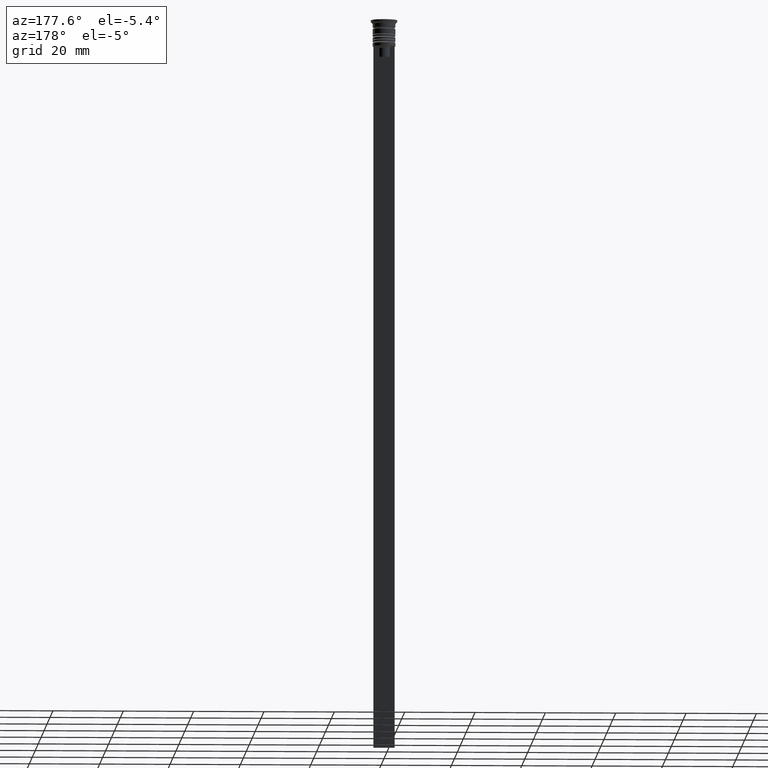
[diagram: clean part render]
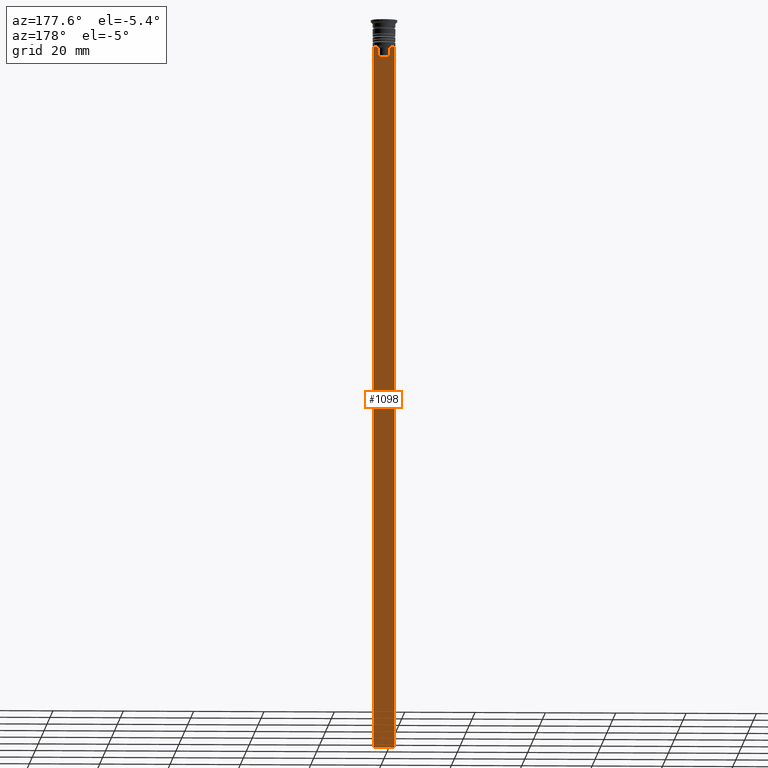
[diagram: same view with one face highlighted and labeled with its STEP entity id]
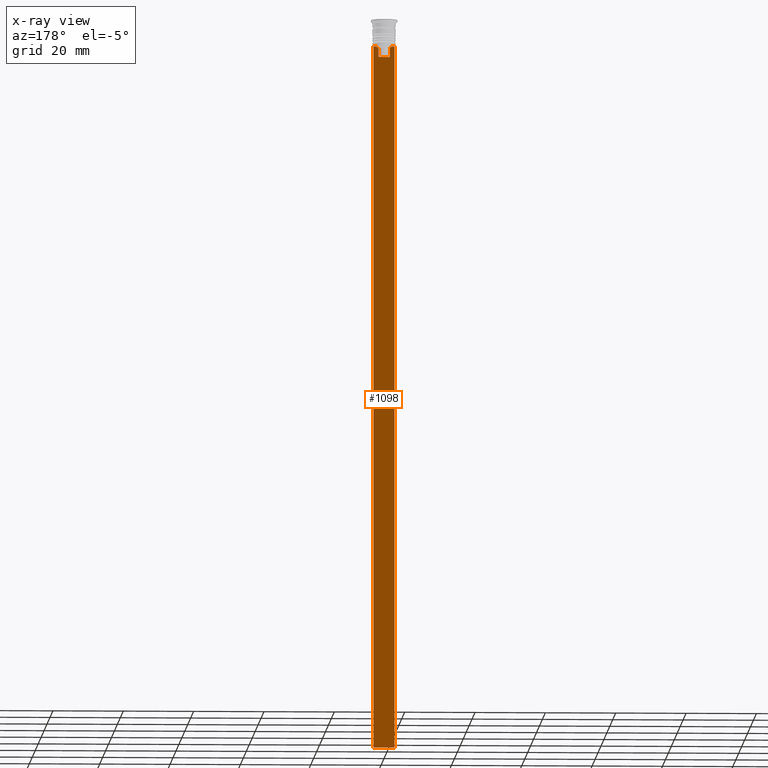
[diagram: x-ray of the same camera — body ghosted, the highlighted face saturated]
A machine part, auxiliary view. The second image highlights one B-rep face of the part: STEP entity #1098.
The next image is the same camera in x-ray: the body ghosted, the highlighted face saturated — about 0% of this face is hidden behind the body in this view.
In plain terms, the highlighted planar face has unit normal (0, -1, -0).
Its self-contained STEP definition (entity closure, byte-faithful):
#26 = VERTEX_POINT ( 'NONE', #1811 ) ;
#31 = CARTESIAN_POINT ( 'NONE',  ( -3.000000000000004441, 0.3500000000000000333, -1.459304675784417915 ) ) ;
#87 = EDGE_LOOP ( 'NONE', ( #2074, #374, #1721, #1039, #1205, #1799, #2008, #734, #478, #946 ) ) ;
#95 = DIRECTION ( 'NONE',  ( 0.000000000000000000, 0.000000000000000000, -1.000000000000000000 ) ) ;
#99 = CARTESIAN_POINT ( 'NONE',  ( 2.121320343559647270, 0.3500000000000000333, -7.500000000000000000 ) ) ;
#110 = CARTESIAN_POINT ( 'NONE',  ( -3.000000000000004441, 0.3500000000000000333, -207.5000000000000284 ) ) ;
#137 = EDGE_CURVE ( 'NONE', #418, #26, #1937, .T. ) ;
#150 = VERTEX_POINT ( 'NONE', #110 ) ;
#151 = DIRECTION ( 'NONE',  ( 1.000000000000000000, 0.000000000000000000, 0.000000000000000000 ) ) ;
#157 = LINE ( 'NONE', #1676, #1219 ) ;
#172 = VERTEX_POINT ( 'NONE', #2129 ) ;
#190 = EDGE_CURVE ( 'NONE', #1379, #397, #1712, .T. ) ;
#247 = DIRECTION ( 'NONE',  ( 0.000000000000000000, -1.000000000000000000, -0.000000000000000000 ) ) ;
#273 = FACE_OUTER_BOUND ( 'NONE', #87, .T. ) ;
#283 = PLANE ( 'NONE',  #435 ) ;
#374 = ORIENTED_EDGE ( 'NONE', *, *, #190, .T. ) ;
#385 = CARTESIAN_POINT ( 'NONE',  ( -1.612451549659713601, 0.3500000000000000333, -8.000000000000000000 ) ) ;
#397 = VERTEX_POINT ( 'NONE', #385 ) ;
#413 = DIRECTION ( 'NONE',  ( 0.000000000000000000, 0.000000000000000000, -1.000000000000000000 ) ) ;
#418 = VERTEX_POINT ( 'NONE', #1869 ) ;
#435 = AXIS2_PLACEMENT_3D ( 'NONE', #790, #247, #95 ) ;
#478 = ORIENTED_EDGE ( 'NONE', *, *, #2126, .T. ) ;
#493 = DIRECTION ( 'NONE',  ( -1.000000000000000000, 0.000000000000000000, 0.000000000000000000 ) ) ;
#526 = EDGE_CURVE ( 'NONE', #2000, #172, #828, .T. ) ;
#645 = EDGE_CURVE ( 'NONE', #172, #1258, #1849, .T. ) ;
#653 = CARTESIAN_POINT ( 'NONE',  ( 2.999999999999995559, 0.3500000000000000333, -207.5000000000000284 ) ) ;
#661 = CARTESIAN_POINT ( 'NONE',  ( -1.952043732028445167, 0.3500000000000000333, -7.667018567316270961 ) ) ;
#704 = VECTOR ( 'NONE', #1103, 1000.000000000000000 ) ;
#734 = ORIENTED_EDGE ( 'NONE', *, *, #2155, .T. ) ;
#766 = VERTEX_POINT ( 'NONE', #1040 ) ;
#790 = CARTESIAN_POINT ( 'NONE',  ( 2.999999999999995559, 0.3500000000000000333, -1.459304675784417915 ) ) ;
#811 = CARTESIAN_POINT ( 'NONE',  ( 2.999999999999995559, 0.3500000000000000333, -7.500000000000000000 ) ) ;
#814 = CARTESIAN_POINT ( 'NONE',  ( -2.121320343559647270, 0.3500000000000000333, -7.500000000000000000 ) ) ;
#820 = LINE ( 'NONE', #1854, #1069 ) ;
#828 = B_SPLINE_CURVE_WITH_KNOTS ( 'NONE', 3,
 ( #1808, #1795, #2138, #99 ),
 .UNSPECIFIED., .F., .F.,
 ( 4, 4 ),
 ( 0.008600796474521226961, 0.009317962624906524910 ),
 .UNSPECIFIED. ) ;
#864 = LINE ( 'NONE', #31, #1909 ) ;
#946 = ORIENTED_EDGE ( 'NONE', *, *, #1468, .F. ) ;
#961 = VECTOR ( 'NONE', #1180, 1000.000000000000000 ) ;
#1039 = ORIENTED_EDGE ( 'NONE', *, *, #137, .T. ) ;
#1040 = CARTESIAN_POINT ( 'NONE',  ( -3.000000000000004441, 0.3499999999999999223, -7.500000000000000000 ) ) ;
#1069 = VECTOR ( 'NONE', #1494, 1000.000000000000000 ) ;
#1098 = ADVANCED_FACE ( 'NONE', ( #273 ), #283, .F. ) ;
#1103 = DIRECTION ( 'NONE',  ( 1.000000000000000000, 0.000000000000000000, 0.000000000000000000 ) ) ;
#1180 = DIRECTION ( 'NONE',  ( 1.000000000000000000, 0.000000000000000000, 0.000000000000000000 ) ) ;
#1201 = EDGE_CURVE ( 'NONE', #766, #1379, #1672, .T. ) ;
#1205 = ORIENTED_EDGE ( 'NONE', *, *, #1668, .T. ) ;
#1208 = VECTOR ( 'NONE', #151, 1000.000000000000000 ) ;
#1219 = VECTOR ( 'NONE', #493, 1000.000000000000000 ) ;
#1258 = VERTEX_POINT ( 'NONE', #1656 ) ;
#1320 = LINE ( 'NONE', #2152, #1496 ) ;
#1376 = DIRECTION ( 'NONE',  ( 0.000000000000000000, 0.000000000000000000, -1.000000000000000000 ) ) ;
#1379 = VERTEX_POINT ( 'NONE', #2032 ) ;
#1424 = VECTOR ( 'NONE', #413, 1000.000000000000000 ) ;
#1468 = EDGE_CURVE ( 'NONE', #766, #150, #864, .T. ) ;
#1494 = DIRECTION ( 'NONE',  ( -0.000000000000000000, -0.000000000000000000, 1.000000000000000000 ) ) ;
#1496 = VECTOR ( 'NONE', #1989, 1000.000000000000000 ) ;
#1619 = LINE ( 'NONE', #1761, #1424 ) ;
#1656 = CARTESIAN_POINT ( 'NONE',  ( 2.999999999999995559, 0.3500000000000000333, -7.500000000000000000 ) ) ;
#1668 = EDGE_CURVE ( 'NONE', #26, #2000, #820, .T. ) ;
#1672 = LINE ( 'NONE', #811, #961 ) ;
#1676 = CARTESIAN_POINT ( 'NONE',  ( 2.999999999999995559, 0.3500000000000000333, -207.5000000000000284 ) ) ;
#1712 = B_SPLINE_CURVE_WITH_KNOTS ( 'NONE', 3,
 ( #814, #661, #2015, #1851 ),
 .UNSPECIFIED., .F., .F.,
 ( 4, 4 ),
 ( 0.003684653461239336628, 0.004398058763641255961 ),
 .UNSPECIFIED. ) ;
#1721 = ORIENTED_EDGE ( 'NONE', *, *, #1985, .T. ) ;
#1751 = CARTESIAN_POINT ( 'NONE',  ( 1.612451549659713601, 0.3500000000000000333, -8.000000000000000000 ) ) ;
#1761 = CARTESIAN_POINT ( 'NONE',  ( -1.612451549659713601, 0.3500000000000000333, 0.000000000000000000 ) ) ;
#1795 = CARTESIAN_POINT ( 'NONE',  ( 1.782523989086206795, 0.3500000000000000333, -7.833797837268088315 ) ) ;
#1799 = ORIENTED_EDGE ( 'NONE', *, *, #526, .T. ) ;
#1808 = CARTESIAN_POINT ( 'NONE',  ( 1.612451549659713601, 0.3500000000000000333, -8.000000000000000000 ) ) ;
#1811 = CARTESIAN_POINT ( 'NONE',  ( 1.612451549659713601, 0.3500000000000000333, -10.49999999999999822 ) ) ;
#1849 = LINE ( 'NONE', #2003, #1208 ) ;
#1851 = CARTESIAN_POINT ( 'NONE',  ( -1.612451549659713601, 0.3500000000000000333, -8.000000000000000000 ) ) ;
#1854 = CARTESIAN_POINT ( 'NONE',  ( 1.612451549659713601, 0.3500000000000000333, 0.000000000000000000 ) ) ;
#1869 = CARTESIAN_POINT ( 'NONE',  ( -1.612451549659713601, 0.3500000000000000333, -10.49999999999999822 ) ) ;
#1909 = VECTOR ( 'NONE', #1376, 1000.000000000000000 ) ;
#1937 = LINE ( 'NONE', #2151, #704 ) ;
#1985 = EDGE_CURVE ( 'NONE', #397, #418, #1619, .T. ) ;
#1989 = DIRECTION ( 'NONE',  ( 0.000000000000000000, 0.000000000000000000, -1.000000000000000000 ) ) ;
#2000 = VERTEX_POINT ( 'NONE', #1751 ) ;
#2003 = CARTESIAN_POINT ( 'NONE',  ( 2.999999999999995559, 0.3500000000000000333, -7.500000000000000000 ) ) ;
#2008 = ORIENTED_EDGE ( 'NONE', *, *, #645, .T. ) ;
#2015 = CARTESIAN_POINT ( 'NONE',  ( -1.782527878033863589, 0.3500000000000000333, -7.833794036819862860 ) ) ;
#2032 = CARTESIAN_POINT ( 'NONE',  ( -2.121320343559647270, 0.3500000000000000333, -7.500000000000000000 ) ) ;
#2064 = VERTEX_POINT ( 'NONE', #653 ) ;
#2074 = ORIENTED_EDGE ( 'NONE', *, *, #1201, .T. ) ;
#2126 = EDGE_CURVE ( 'NONE', #2064, #150, #157, .T. ) ;
#2129 = CARTESIAN_POINT ( 'NONE',  ( 2.121320343559647270, 0.3500000000000000333, -7.500000000000000000 ) ) ;
#2138 = CARTESIAN_POINT ( 'NONE',  ( 1.952040775369266346, 0.3500000000000000333, -7.667021484535463394 ) ) ;
#2151 = CARTESIAN_POINT ( 'NONE',  ( 0.000000000000000000, 0.3500000000000000333, -10.49999999999999822 ) ) ;
#2152 = CARTESIAN_POINT ( 'NONE',  ( 2.999999999999995559, 0.3500000000000000333, -1.459304675784417915 ) ) ;
#2155 = EDGE_CURVE ( 'NONE', #1258, #2064, #1320, .T. ) ;